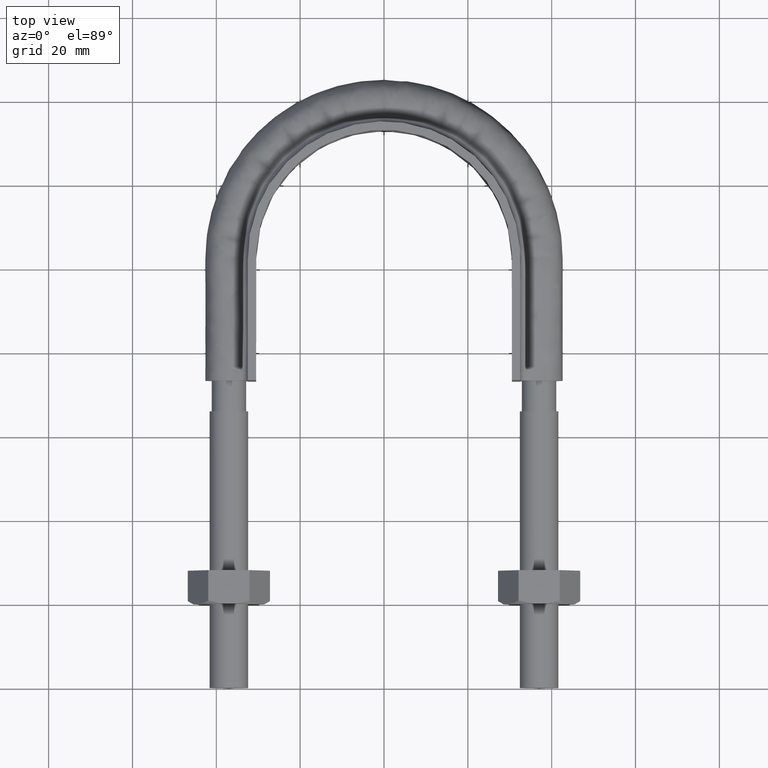
[diagram: clean part render]
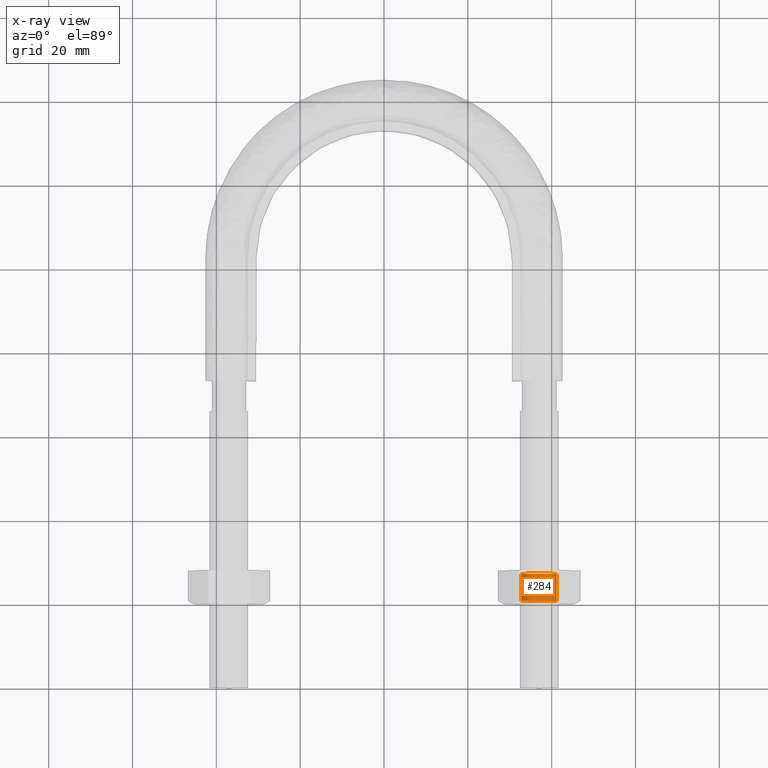
[diagram: x-ray — body ghosted, one internal face saturated and labeled with its STEP entity id]
A machine part, top view, then the same camera in x-ray: the body is ghosted and one INTERNAL B-rep face — a face not visible from any outside direction — is saturated and labeled: STEP entity #284.
In plain terms, the highlighted cylindrical surface (bore or boss wall) has radius 4.188 mm, axis along (0, 1, -0).
Its self-contained STEP definition (entity closure, byte-faithful):
#284 = ADVANCED_FACE( '', ( #444, #445 ), #446, .F. );
#444 = FACE_OUTER_BOUND( '', #1441, .T. );
#445 = FACE_OUTER_BOUND( '', #1442, .T. );
#446 = CYLINDRICAL_SURFACE( '', #1443, 4.18800000000000 );
#1441 = EDGE_LOOP( '', ( #1926 ) );
#1442 = EDGE_LOOP( '', ( #1927 ) );
#1443 = AXIS2_PLACEMENT_3D( '', #1928, #1929, #1930 );
#1926 = ORIENTED_EDGE( '', *, *, #2146, .F. );
#1927 = ORIENTED_EDGE( '', *, *, #2122, .T. );
#1928 = CARTESIAN_POINT( '', ( 37.0000000000000, 27.9999999999964, -1.11228300875288E-015 ) );
#1929 = DIRECTION( '', ( 2.44921270764475E-016, 1.00000000000000, -6.12303176911193E-017 ) );
#1930 = DIRECTION( '', ( -0.866025403784242, 1.81492883563574E-016, -0.500000000000340 ) );
#2122 = EDGE_CURVE( '', #2354, #2354, #2355, .T. );
#2146 = EDGE_CURVE( '', #2393, #2393, #2394, .F. );
#2354 = VERTEX_POINT( '', #2966 );
#2355 = CIRCLE( '', #2967, 4.18800000000000 );
#2393 = VERTEX_POINT( '', #3023 );
#2394 = CIRCLE( '', #3024, 4.18800000000000 );
#2966 = CARTESIAN_POINT( '', ( 32.8120000000000, 27.1879999999964, -1.06256399078769E-015 ) );
#2967 = AXIS2_PLACEMENT_3D( '', #3233, #3234, #3235 );
#3023 = CARTESIAN_POINT( '', ( 41.1880000000000, 20.8119999999964, -6.72159485189117E-016 ) );
#3024 = AXIS2_PLACEMENT_3D( '', #3283, #3284, #3285 );
#3233 = CARTESIAN_POINT( '', ( 37.0000000000000, 27.1879999999964, -1.06256399078769E-015 ) );
#3234 = DIRECTION( '', ( 2.44921270764475E-016, 1.00000000000000, -6.12303176911193E-017 ) );
#3235 = DIRECTION( '', ( -1.00000000000000, 2.44921270764475E-016, 0.000000000000000 ) );
#3283 = CARTESIAN_POINT( '', ( 37.0000000000000, 20.8119999999964, -6.72159485189117E-016 ) );
#3284 = DIRECTION( '', ( -2.44921270764475E-016, -1.00000000000000, 6.12303176911193E-017 ) );
#3285 = DIRECTION( '', ( 1.00000000000000, -2.44921270764475E-016, 0.000000000000000 ) );